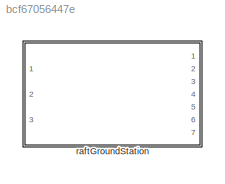
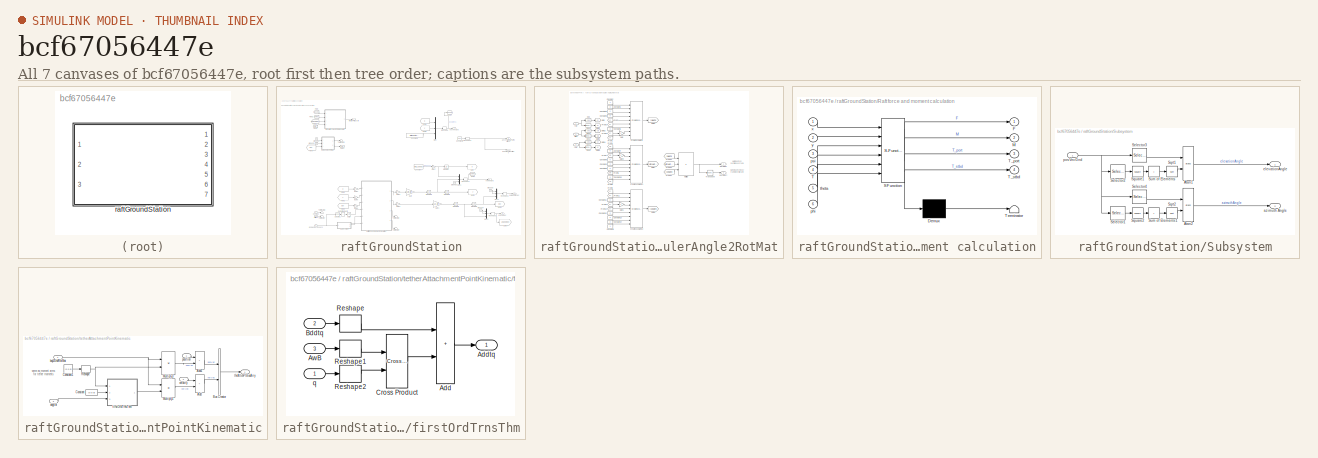
[diagram: thumbnail index - all 7 canvases of the model, root first then tree order]
MODEL slx_bcf67056447e
KIND library
CONFIG AbsTol = auto
CONFIG EnableMultiTasking = off
CONFIG FixedStep = auto
CONFIG MaxStep = auto
CONFIG MinStep = auto
CONFIG RelTol = 1e-3
CONFIG SampleTimeConstraint = Unconstrained
CONFIG SolverName = VariableStepAuto
CONFIG StartTime = 0.0
CONFIG StopTime = 10.0
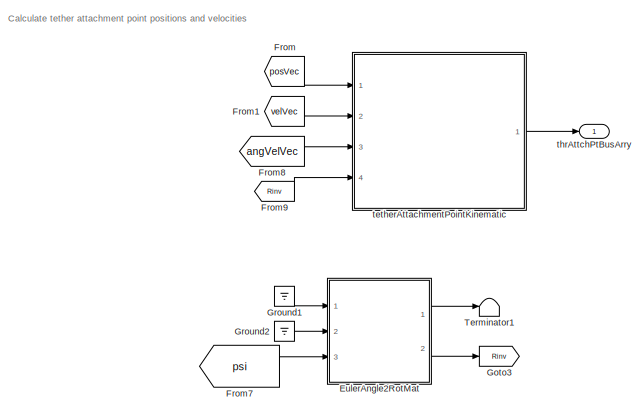
[diagram: raftGroundStation - part 1/3, top left region]
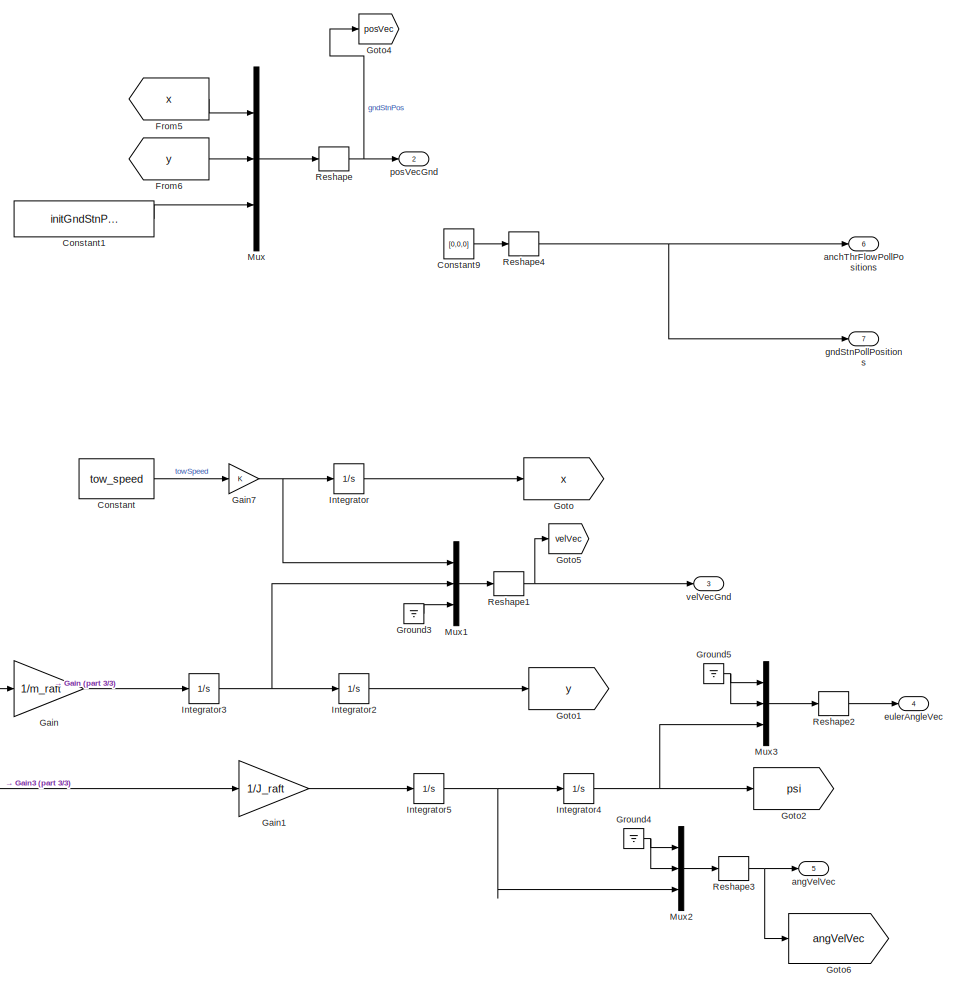
[diagram: raftGroundStation - part 2/3, right side, full height]
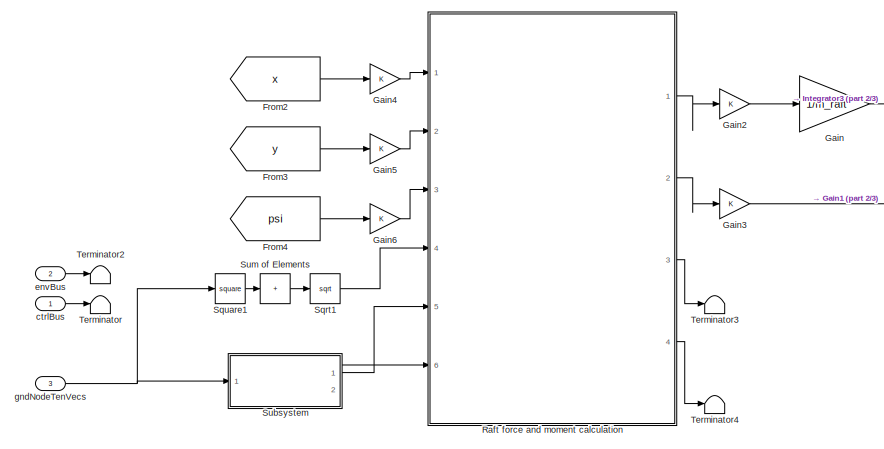
[diagram: raftGroundStation - part 3/3, bottom center region]
BLOCK [SubSystem] raftGroundStation
  Ports = [3, 7]
  RequestExecContextInheritance = off
  VariantControl = VSS_groundStation_raftGroundStation
BLOCK [Constant] raftGroundStation/Constant
  Value = tow_speed
BLOCK [Constant] raftGroundStation/Constant1
  Value = initGndStnPos(3)
BLOCK [Constant] raftGroundStation/Constant9
  Value = [0,0,0]
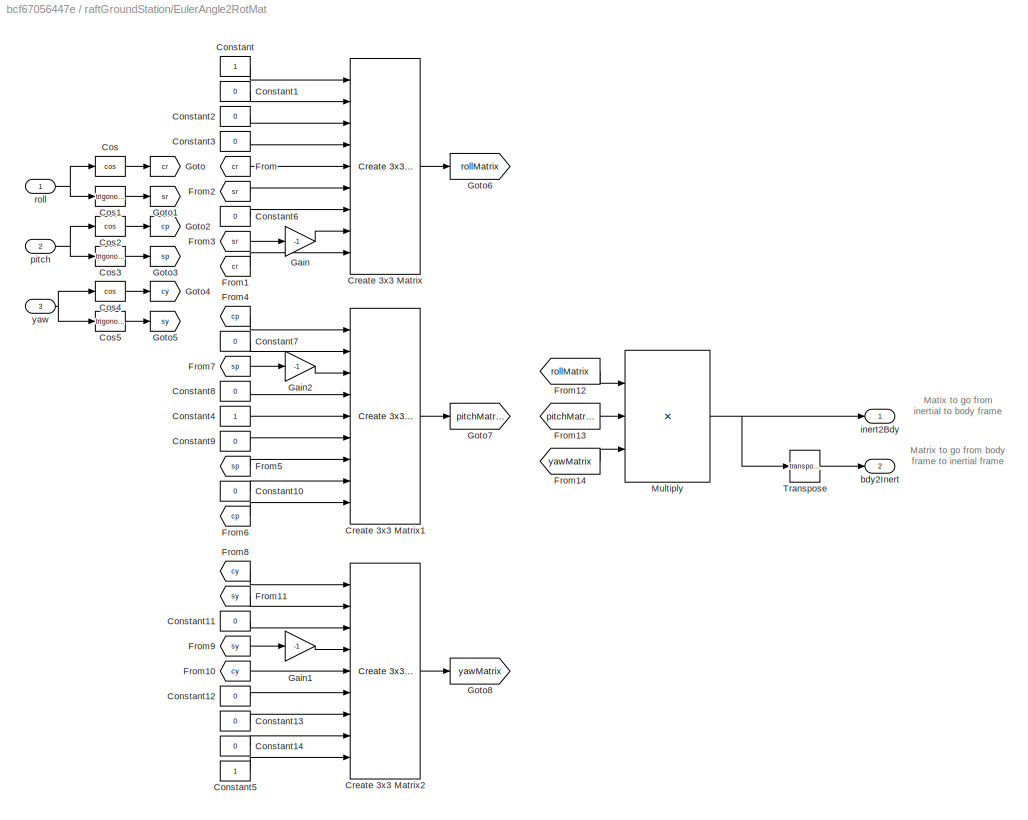
BLOCK [SubSystem] raftGroundStation/EulerAngle2RotMat
  AncestorBlock = eulAng2RotMat_ul/EulerAngle2RotMat
  Ports = [3, 2]
  RequestExecContextInheritance = off
BLOCK [Constant] raftGroundStation/EulerAngle2RotMat/Constant
BLOCK [Constant] raftGroundStation/EulerAngle2RotMat/Constant1
  Value = 0
BLOCK [Constant] raftGroundStation/EulerAngle2RotMat/Constant10
  Value = 0
BLOCK [Constant] raftGroundStation/EulerAngle2RotMat/Constant11
  Value = 0
BLOCK [Constant] raftGroundStation/EulerAngle2RotMat/Constant12
  Value = 0
BLOCK [Constant] raftGroundStation/EulerAngle2RotMat/Constant13
  Value = 0
BLOCK [Constant] raftGroundStation/EulerAngle2RotMat/Constant14
  Value = 0
BLOCK [Constant] raftGroundStation/EulerAngle2RotMat/Constant2
  Value = 0
BLOCK [Constant] raftGroundStation/EulerAngle2RotMat/Constant3
  Value = 0
BLOCK [Constant] raftGroundStation/EulerAngle2RotMat/Constant4
BLOCK [Constant] raftGroundStation/EulerAngle2RotMat/Constant5
BLOCK [Constant] raftGroundStation/EulerAngle2RotMat/Constant6
  Value = 0
BLOCK [Constant] raftGroundStation/EulerAngle2RotMat/Constant7
  Value = 0
BLOCK [Constant] raftGroundStation/EulerAngle2RotMat/Constant8
  Value = 0
BLOCK [Constant] raftGroundStation/EulerAngle2RotMat/Constant9
  Value = 0
BLOCK [Trigonometry] raftGroundStation/EulerAngle2RotMat/Cos
  Operator = cos
  Ports = [1, 1]
BLOCK [Trigonometry] raftGroundStation/EulerAngle2RotMat/Cos1
  Ports = [1, 1]
BLOCK [Trigonometry] raftGroundStation/EulerAngle2RotMat/Cos2
  Operator = cos
  Ports = [1, 1]
BLOCK [Trigonometry] raftGroundStation/EulerAngle2RotMat/Cos3
  Ports = [1, 1]
BLOCK [Trigonometry] raftGroundStation/EulerAngle2RotMat/Cos4
  Operator = cos
  Ports = [1, 1]
BLOCK [Trigonometry] raftGroundStation/EulerAngle2RotMat/Cos5
  Ports = [1, 1]
BLOCK [Reference] raftGroundStation/EulerAngle2RotMat/Create 3x3 Matrix  REF=sharedutil/Create 3x3 Matrix
  Ports = [9, 1]
  SourceBlock = sharedutil/Create 3x3 Matrix
  SourceProductBaseCode = AE,PW,DR,MT,VE
  SourceType = Create 3x3 Matrix
BLOCK [Reference] raftGroundStation/EulerAngle2RotMat/Create 3x3 Matrix1  REF=sharedutil/Create 3x3 Matrix
  Ports = [9, 1]
  SourceBlock = sharedutil/Create 3x3 Matrix
  SourceProductBaseCode = AE,PW,DR,MT,VE
  SourceType = Create 3x3 Matrix
BLOCK [Reference] raftGroundStation/EulerAngle2RotMat/Create 3x3 Matrix2  REF=sharedutil/Create 3x3 Matrix
  Ports = [9, 1]
  SourceBlock = sharedutil/Create 3x3 Matrix
  SourceProductBaseCode = AE,PW,DR,MT,VE
  SourceType = Create 3x3 Matrix
BLOCK [From] raftGroundStation/EulerAngle2RotMat/From
  GotoTag = cr
BLOCK [From] raftGroundStation/EulerAngle2RotMat/From1
  GotoTag = cr
BLOCK [From] raftGroundStation/EulerAngle2RotMat/From10
  GotoTag = cy
BLOCK [From] raftGroundStation/EulerAngle2RotMat/From11
  GotoTag = sy
BLOCK [From] raftGroundStation/EulerAngle2RotMat/From12
  GotoTag = rollMatrix
BLOCK [From] raftGroundStation/EulerAngle2RotMat/From13
  GotoTag = pitchMatrix
BLOCK [From] raftGroundStation/EulerAngle2RotMat/From14
  GotoTag = yawMatrix
BLOCK [From] raftGroundStation/EulerAngle2RotMat/From2
  GotoTag = sr
BLOCK [From] raftGroundStation/EulerAngle2RotMat/From3
  GotoTag = sr
BLOCK [From] raftGroundStation/EulerAngle2RotMat/From4
  GotoTag = cp
BLOCK [From] raftGroundStation/EulerAngle2RotMat/From5
  GotoTag = sp
BLOCK [From] raftGroundStation/EulerAngle2RotMat/From6
  GotoTag = cp
BLOCK [From] raftGroundStation/EulerAngle2RotMat/From7
  GotoTag = sp
BLOCK [From] raftGroundStation/EulerAngle2RotMat/From8
  GotoTag = cy
BLOCK [From] raftGroundStation/EulerAngle2RotMat/From9
  GotoTag = sy
BLOCK [Gain] raftGroundStation/EulerAngle2RotMat/Gain
  Gain = -1
BLOCK [Gain] raftGroundStation/EulerAngle2RotMat/Gain1
  Gain = -1
BLOCK [Gain] raftGroundStation/EulerAngle2RotMat/Gain2
  Gain = -1
BLOCK [Goto] raftGroundStation/EulerAngle2RotMat/Goto
  GotoTag = cr
BLOCK [Goto] raftGroundStation/EulerAngle2RotMat/Goto1
  GotoTag = sr
BLOCK [Goto] raftGroundStation/EulerAngle2RotMat/Goto2
  GotoTag = cp
BLOCK [Goto] raftGroundStation/EulerAngle2RotMat/Goto3
  GotoTag = sp
BLOCK [Goto] raftGroundStation/EulerAngle2RotMat/Goto4
  GotoTag = cy
BLOCK [Goto] raftGroundStation/EulerAngle2RotMat/Goto5
  GotoTag = sy
BLOCK [Goto] raftGroundStation/EulerAngle2RotMat/Goto6
  GotoTag = rollMatrix
BLOCK [Goto] raftGroundStation/EulerAngle2RotMat/Goto7
  GotoTag = pitchMatrix
BLOCK [Goto] raftGroundStation/EulerAngle2RotMat/Goto8
  GotoTag = yawMatrix
BLOCK [Product] raftGroundStation/EulerAngle2RotMat/Multiply
  Inputs = 3
  Multiplication = Matrix(*)
  Ports = [3, 1]
BLOCK [Math] raftGroundStation/EulerAngle2RotMat/Transpose
  Operator = transpose
  Ports = [1, 1]
  SignedPower = on
BLOCK [Outport] raftGroundStation/EulerAngle2RotMat/bdy2Inert
  Port = 2
  VectorParamsAs1DForOutWhenUnconnected = off
BLOCK [Outport] raftGroundStation/EulerAngle2RotMat/inert2Bdy
  VectorParamsAs1DForOutWhenUnconnected = off
BLOCK [Inport] raftGroundStation/EulerAngle2RotMat/pitch
  Port = 2
BLOCK [Inport] raftGroundStation/EulerAngle2RotMat/roll
BLOCK [Inport] raftGroundStation/EulerAngle2RotMat/yaw
  Port = 3
BLOCK [From] raftGroundStation/From
  GotoTag = posVec
BLOCK [From] raftGroundStation/From1
  GotoTag = velVec
BLOCK [From] raftGroundStation/From2
  GotoTag = x
BLOCK [From] raftGroundStation/From3
  GotoTag = y
BLOCK [From] raftGroundStation/From4
  GotoTag = psi
BLOCK [From] raftGroundStation/From5
  GotoTag = x
BLOCK [From] raftGroundStation/From6
  GotoTag = y
BLOCK [From] raftGroundStation/From7
  GotoTag = psi
BLOCK [From] raftGroundStation/From8
  GotoTag = angVelVec
BLOCK [From] raftGroundStation/From9
  GotoTag = Rinv
BLOCK [Gain] raftGroundStation/Gain
  Gain = 1/m_raft
BLOCK [Gain] raftGroundStation/Gain1
  Gain = 1/J_raft
BLOCK [Gain] raftGroundStation/Gain2
BLOCK [Gain] raftGroundStation/Gain3
BLOCK [Gain] raftGroundStation/Gain4
BLOCK [Gain] raftGroundStation/Gain5
BLOCK [Gain] raftGroundStation/Gain6
BLOCK [Gain] raftGroundStation/Gain7
BLOCK [Goto] raftGroundStation/Goto
  GotoTag = x
BLOCK [Goto] raftGroundStation/Goto1
  GotoTag = y
BLOCK [Goto] raftGroundStation/Goto2
  GotoTag = psi
BLOCK [Goto] raftGroundStation/Goto3
  GotoTag = Rinv
BLOCK [Goto] raftGroundStation/Goto4
  GotoTag = posVec
BLOCK [Goto] raftGroundStation/Goto5
  GotoTag = velVec
BLOCK [Goto] raftGroundStation/Goto6
  GotoTag = angVelVec
BLOCK [Ground] raftGroundStation/Ground1
BLOCK [Ground] raftGroundStation/Ground2
BLOCK [Ground] raftGroundStation/Ground3
BLOCK [Ground] raftGroundStation/Ground4
BLOCK [Ground] raftGroundStation/Ground5
BLOCK [Integrator] raftGroundStation/Integrator
  InitialCondition = x_init
  Ports = [1, 1]
BLOCK [Integrator] raftGroundStation/Integrator2
  InitialCondition = y_init
  Ports = [1, 1]
BLOCK [Integrator] raftGroundStation/Integrator3
  InitialCondition = y_dot_init
  Ports = [1, 1]
BLOCK [Integrator] raftGroundStation/Integrator4
  InitialCondition = psi_init
  Ports = [1, 1]
BLOCK [Integrator] raftGroundStation/Integrator5
  InitialCondition = psi_dot_init
  Ports = [1, 1]
BLOCK [Mux] raftGroundStation/Mux
  DisplayOption = bar
  Inputs = 3
  Ports = [3, 1]
BLOCK [Mux] raftGroundStation/Mux1
  DisplayOption = bar
  Inputs = 3
  Ports = [3, 1]
BLOCK [Mux] raftGroundStation/Mux2
  DisplayOption = bar
  Inputs = 3
  Ports = [3, 1]
BLOCK [Mux] raftGroundStation/Mux3
  DisplayOption = bar
  Inputs = 3
  Ports = [3, 1]
BLOCK [SubSystem] raftGroundStation/Raft force and moment calculation
  ErrorFcn = Stateflow.Translate.translate
  PermitHierarchicalResolution = ExplicitOnly
  Ports = [6, 4]
  RequestExecContextInheritance = off
  SFBlockType = MATLAB Function
  TreatAsAtomicUnit = on
BLOCK [Demux] raftGroundStation/Raft force and moment calculation/ Demux 
  Outputs = 1
  Ports = [1, 1]
BLOCK [S-Function] raftGroundStation/Raft force and moment calculation/ SFunction 
  EnableBusSupport = off
  FunctionName = sf_sfun
  PortCounts = [6 5]
  Ports = [6, 5]
  SFcnIsStateOwnerBlock = off
  SFunctionDeploymentMode = off
  Tag = Stateflow S-Function 45
BLOCK [Terminator] raftGroundStation/Raft force and moment calculation/ Terminator 
BLOCK [Outport] raftGroundStation/Raft force and moment calculation/F
  VectorParamsAs1DForOutWhenUnconnected = off
BLOCK [Outport] raftGroundStation/Raft force and moment calculation/M
  Port = 2
  VectorParamsAs1DForOutWhenUnconnected = off
BLOCK [Inport] raftGroundStation/Raft force and moment calculation/T
  Port = 4
BLOCK [Outport] raftGroundStation/Raft force and moment calculation/T_port
  Port = 3
  VectorParamsAs1DForOutWhenUnconnected = off
BLOCK [Outport] raftGroundStation/Raft force and moment calculation/T_stbd
  Port = 4
  VectorParamsAs1DForOutWhenUnconnected = off
BLOCK [Inport] raftGroundStation/Raft force and moment calculation/phi
  Port = 6
BLOCK [Inport] raftGroundStation/Raft force and moment calculation/psi
  Port = 3
BLOCK [Inport] raftGroundStation/Raft force and moment calculation/theta
  Port = 5
BLOCK [Inport] raftGroundStation/Raft force and moment calculation/x
BLOCK [Inport] raftGroundStation/Raft force and moment calculation/y
  Port = 2
BLOCK [Reshape] raftGroundStation/Reshape
  OutputDimensionality = Column vector (2-D)
  Ports = [1, 1]
BLOCK [Reshape] raftGroundStation/Reshape1
  OutputDimensionality = Column vector (2-D)
  Ports = [1, 1]
BLOCK [Reshape] raftGroundStation/Reshape2
  OutputDimensionality = Column vector (2-D)
  Ports = [1, 1]
BLOCK [Reshape] raftGroundStation/Reshape3
  OutputDimensionality = Column vector (2-D)
  Ports = [1, 1]
BLOCK [Reshape] raftGroundStation/Reshape4
  OutputDimensionality = Column vector (2-D)
  Ports = [1, 1]
BLOCK [Sqrt] raftGroundStation/Sqrt1
BLOCK [Math] raftGroundStation/Square1
  Operator = square
  Ports = [1, 1]
  SignedPower = on
BLOCK [SubSystem] raftGroundStation/Subsystem
  Ports = [1, 2]
  RequestExecContextInheritance = off
BLOCK [Trigonometry] raftGroundStation/Subsystem/Atan1
  Operator = atan2
  Ports = [2, 1]
BLOCK [Trigonometry] raftGroundStation/Subsystem/Atan2
  Operator = atan2
  Ports = [2, 1]
BLOCK [Selector] raftGroundStation/Subsystem/Selector1
  IndexOptions = Index vector (dialog)
  Indices = 1
  InputPortWidth = 3
  OutputSizes = 1
  Ports = [1, 1]
BLOCK [Selector] raftGroundStation/Subsystem/Selector2
  IndexOptions = Index vector (dialog)
  Indices = [1 2]
  InputPortWidth = 3
  OutputSizes = 1
  Ports = [1, 1]
BLOCK [Selector] raftGroundStation/Subsystem/Selector3
  IndexOptions = Index vector (dialog)
  Indices = 3
  InputPortWidth = 3
  OutputSizes = 1
  Ports = [1, 1]
BLOCK [Selector] raftGroundStation/Subsystem/Selector4
  IndexOptions = Index vector (dialog)
  Indices = 2
  InputPortWidth = 3
  OutputSizes = 1
  Ports = [1, 1]
BLOCK [Sqrt] raftGroundStation/Subsystem/Sqrt1
BLOCK [Sqrt] raftGroundStation/Subsystem/Sqrt2
BLOCK [Math] raftGroundStation/Subsystem/Square1
  Operator = square
  Ports = [1, 1]
  SignedPower = on
BLOCK [Math] raftGroundStation/Subsystem/Square2
  Operator = square
  Ports = [1, 1]
  SignedPower = on
BLOCK [Sum] raftGroundStation/Subsystem/Sum of Elements
  IconShape = rectangular
  Inputs = +
  Ports = [1, 1]
BLOCK [Sum] raftGroundStation/Subsystem/Sum of Elements1
  IconShape = rectangular
  Inputs = +
  Ports = [1, 1]
BLOCK [Outport] raftGroundStation/Subsystem/azimuth Angle
  Port = 2
BLOCK [Outport] raftGroundStation/Subsystem/elevationAngle
BLOCK [Inport] raftGroundStation/Subsystem/posVecGnd
BLOCK [Sum] raftGroundStation/Sum of Elements
  IconShape = rectangular
  Inputs = +
  Ports = [1, 1]
BLOCK [Terminator] raftGroundStation/Terminator
BLOCK [Terminator] raftGroundStation/Terminator1
BLOCK [Terminator] raftGroundStation/Terminator2
BLOCK [Terminator] raftGroundStation/Terminator3
BLOCK [Terminator] raftGroundStation/Terminator4
BLOCK [Outport] raftGroundStation/anchThrFlowPollPositions
  Port = 6
  VectorParamsAs1DForOutWhenUnconnected = off
BLOCK [Outport] raftGroundStation/angVelVec
  Port = 5
  VectorParamsAs1DForOutWhenUnconnected = off
BLOCK [Inport] raftGroundStation/ctrlBus
  OutDataTypeStr = Bus: gndStnCtrlBus
BLOCK [Inport] raftGroundStation/envBus
  OutDataTypeStr = Bus: envBus
  Port = 2
BLOCK [Outport] raftGroundStation/eulerAngleVec
  Port = 4
  VectorParamsAs1DForOutWhenUnconnected = off
BLOCK [Inport] raftGroundStation/gndNodeTenVecs
  Port = 3
BLOCK [Outport] raftGroundStation/gndStnPollPositions
  Port = 7
  VectorParamsAs1DForOutWhenUnconnected = off
BLOCK [Outport] raftGroundStation/posVecGnd
  Port = 2
  VectorParamsAs1DForOutWhenUnconnected = off
BLOCK [SubSystem] raftGroundStation/tetherAttachmentPointKinematic
  InitFcn = thrAttachPtKinematics_init
  Ports = [4, 1]
  RequestExecContextInheritance = off
BLOCK [Sum] raftGroundStation/tetherAttachmentPointKinematic/Add
  IconShape = rectangular
  Ports = [2, 1]
BLOCK [Sum] raftGroundStation/tetherAttachmentPointKinematic/Add1
  IconShape = rectangular
  Ports = [2, 1]
BLOCK [BusCreator] raftGroundStation/tetherAttachmentPointKinematic/Bus Creator
  DisplayOption = bar
  InheritFromInputs = on
  Inputs = 2
  NonVirtualBus = on
  OutDataTypeStr = Bus: thrAttachPtKinematicsBus
  Ports = [2, 1]
BLOCK [Constant] raftGroundStation/tetherAttachmentPointKinematic/Constant
  Value = [0 0 0]
BLOCK [Constant] raftGroundStation/tetherAttachmentPointKinematic/Constant1
  Value = [0 0 0]
BLOCK [Product] raftGroundStation/tetherAttachmentPointKinematic/Multiply1
  Multiplication = Matrix(*)
  Ports = [2, 1]
BLOCK [Product] raftGroundStation/tetherAttachmentPointKinematic/Multiply3
  Multiplication = Matrix(*)
  Ports = [2, 1]
BLOCK [Reshape] raftGroundStation/tetherAttachmentPointKinematic/Reshape
  OutputDimensionality = Column vector (2-D)
  Ports = [1, 1]
BLOCK [Inport] raftGroundStation/tetherAttachmentPointKinematic/angVel
  Port = 3
BLOCK [Inport] raftGroundStation/tetherAttachmentPointKinematic/bdy2GndRotMat
  Port = 4
BLOCK [SubSystem] raftGroundStation/tetherAttachmentPointKinematic/firstOrdTrnsThm
  AncestorBlock = firstOrdTrnsThm_ul/firstOrdTrnsThm
  Ports = [3, 1]
  RequestExecContextInheritance = off
BLOCK [Sum] raftGroundStation/tetherAttachmentPointKinematic/firstOrdTrnsThm/Add
  IconShape = rectangular
  Ports = [2, 1]
BLOCK [Outport] raftGroundStation/tetherAttachmentPointKinematic/firstOrdTrnsThm/Addtq
  PortDimensions = 3
  VectorParamsAs1DForOutWhenUnconnected = off
BLOCK [Inport] raftGroundStation/tetherAttachmentPointKinematic/firstOrdTrnsThm/AwB
  Port = 3
  PortDimensions = 3
BLOCK [Inport] raftGroundStation/tetherAttachmentPointKinematic/firstOrdTrnsThm/Bddtq
  Port = 2
  PortDimensions = 3
BLOCK [Reference] raftGroundStation/tetherAttachmentPointKinematic/firstOrdTrnsThm/Cross Product  REF=vrlib/Utilities/Cross Product
  Ports = [2, 1]
  SourceBlock = vrlib/Utilities/Cross Product
  SourceProductBaseCode = SL
  SourceType = Cross Product
BLOCK [Reshape] raftGroundStation/tetherAttachmentPointKinematic/firstOrdTrnsThm/Reshape
  OutputDimensionality = Column vector (2-D)
  Ports = [1, 1]
BLOCK [Reshape] raftGroundStation/tetherAttachmentPointKinematic/firstOrdTrnsThm/Reshape1
  OutputDimensionality = Column vector (2-D)
  Ports = [1, 1]
BLOCK [Reshape] raftGroundStation/tetherAttachmentPointKinematic/firstOrdTrnsThm/Reshape2
  OutputDimensionality = Column vector (2-D)
  Ports = [1, 1]
BLOCK [Inport] raftGroundStation/tetherAttachmentPointKinematic/firstOrdTrnsThm/q
  PortDimensions = 3
BLOCK [Inport] raftGroundStation/tetherAttachmentPointKinematic/position
BLOCK [Outport] raftGroundStation/tetherAttachmentPointKinematic/thrAttchPtBusArry
  VectorParamsAs1DForOutWhenUnconnected = off
BLOCK [Inport] raftGroundStation/tetherAttachmentPointKinematic/velocity
  Port = 2
BLOCK [Outport] raftGroundStation/thrAttchPtBusArry
  VectorParamsAs1DForOutWhenUnconnected = off
BLOCK [Outport] raftGroundStation/velVecGnd
  Port = 3
  VectorParamsAs1DForOutWhenUnconnected = off
ANNOTATION raftGroundStation: Calculate tether attachment point positions and velocities
ANNOTATION raftGroundStation/EulerAngle2RotMat: Matix to go from inertial to body frame
ANNOTATION raftGroundStation/EulerAngle2RotMat: Matrix to go from body frame to inertial frame
ANNOTATION raftGroundStation/tetherAttachmentPointKinematic: same as moment arms for tether moments
LINE raftGroundStation/Constant1:1 -> raftGroundStation/Mux:3
LINE raftGroundStation/Constant9:1 -> raftGroundStation/Reshape4:1
LINE raftGroundStation/Constant:1 -> raftGroundStation/Gain7:1
LINE raftGroundStation/EulerAngle2RotMat:1 -> raftGroundStation/Terminator1:1
LINE raftGroundStation/EulerAngle2RotMat:2 -> raftGroundStation/Goto3:1
LINE raftGroundStation/From1:1 -> raftGroundStation/tetherAttachmentPointKinematic:2
LINE raftGroundStation/From2:1 -> raftGroundStation/Gain4:1
LINE raftGroundStation/From3:1 -> raftGroundStation/Gain5:1
LINE raftGroundStation/From4:1 -> raftGroundStation/Gain6:1
LINE raftGroundStation/From5:1 -> raftGroundStation/Mux:1
LINE raftGroundStation/From6:1 -> raftGroundStation/Mux:2
LINE raftGroundStation/From7:1 -> raftGroundStation/EulerAngle2RotMat:3
LINE raftGroundStation/From8:1 -> raftGroundStation/tetherAttachmentPointKinematic:3
LINE raftGroundStation/From9:1 -> raftGroundStation/tetherAttachmentPointKinematic:4
LINE raftGroundStation/From:1 -> raftGroundStation/tetherAttachmentPointKinematic:1
LINE raftGroundStation/Gain1:1 -> raftGroundStation/Integrator5:1
LINE raftGroundStation/Gain2:1 -> raftGroundStation/Gain:1
LINE raftGroundStation/Gain3:1 -> raftGroundStation/Gain1:1
LINE raftGroundStation/Gain4:1 -> raftGroundStation/Raft force and moment calculation:1
LINE raftGroundStation/Gain5:1 -> raftGroundStation/Raft force and moment calculation:2
LINE raftGroundStation/Gain6:1 -> raftGroundStation/Raft force and moment calculation:3
NET raftGroundStation/Gain7:1 -> raftGroundStation/Integrator:1, raftGroundStation/Mux1:1
LINE raftGroundStation/Gain:1 -> raftGroundStation/Integrator3:1
LINE raftGroundStation/Ground1:1 -> raftGroundStation/EulerAngle2RotMat:1
LINE raftGroundStation/Ground2:1 -> raftGroundStation/EulerAngle2RotMat:2
LINE raftGroundStation/Ground3:1 -> raftGroundStation/Mux1:3
NET raftGroundStation/Ground4:1 -> raftGroundStation/Mux2:1, raftGroundStation/Mux2:2
NET raftGroundStation/Ground5:1 -> raftGroundStation/Mux3:1, raftGroundStation/Mux3:2
LINE raftGroundStation/Integrator2:1 -> raftGroundStation/Goto1:1
NET raftGroundStation/Integrator3:1 -> raftGroundStation/Integrator2:1, raftGroundStation/Mux1:2
NET raftGroundStation/Integrator4:1 -> raftGroundStation/Goto2:1, raftGroundStation/Mux3:3
NET raftGroundStation/Integrator5:1 -> raftGroundStation/Integrator4:1, raftGroundStation/Mux2:3
LINE raftGroundStation/Integrator:1 -> raftGroundStation/Goto:1
LINE raftGroundStation/Mux1:1 -> raftGroundStation/Reshape1:1
LINE raftGroundStation/Mux2:1 -> raftGroundStation/Reshape3:1
LINE raftGroundStation/Mux3:1 -> raftGroundStation/Reshape2:1
LINE raftGroundStation/Mux:1 -> raftGroundStation/Reshape:1
LINE raftGroundStation/Raft force and moment calculation:1 -> raftGroundStation/Gain2:1
LINE raftGroundStation/Raft force and moment calculation:2 -> raftGroundStation/Gain3:1
LINE raftGroundStation/Raft force and moment calculation:3 -> raftGroundStation/Terminator3:1
LINE raftGroundStation/Raft force and moment calculation:4 -> raftGroundStation/Terminator4:1
NET raftGroundStation/Reshape1:1 -> raftGroundStation/Goto5:1, raftGroundStation/velVecGnd:1
LINE raftGroundStation/Reshape2:1 -> raftGroundStation/eulerAngleVec:1
NET raftGroundStation/Reshape3:1 -> raftGroundStation/Goto6:1, raftGroundStation/angVelVec:1
NET raftGroundStation/Reshape4:1 -> raftGroundStation/anchThrFlowPollPositions:1, raftGroundStation/gndStnPollPositions:1
NET raftGroundStation/Reshape:1 -> raftGroundStation/Goto4:1, raftGroundStation/posVecGnd:1
LINE raftGroundStation/Sqrt1:1 -> raftGroundStation/Raft force and moment calculation:4
LINE raftGroundStation/Square1:1 -> raftGroundStation/Sum of Elements:1
LINE raftGroundStation/Subsystem/Atan1:1 -> raftGroundStation/Subsystem/elevationAngle:1
LINE raftGroundStation/Subsystem/Atan2:1 -> raftGroundStation/Subsystem/azimuth Angle:1
LINE raftGroundStation/Subsystem/Selector1:1 -> raftGroundStation/Subsystem/Square2:1
LINE raftGroundStation/Subsystem/Selector2:1 -> raftGroundStation/Subsystem/Square1:1
LINE raftGroundStation/Subsystem/Selector3:1 -> raftGroundStation/Subsystem/Atan1:1
LINE raftGroundStation/Subsystem/Selector4:1 -> raftGroundStation/Subsystem/Atan2:1
LINE raftGroundStation/Subsystem/Sqrt1:1 -> raftGroundStation/Subsystem/Atan1:2
LINE raftGroundStation/Subsystem/Sqrt2:1 -> raftGroundStation/Subsystem/Atan2:2
LINE raftGroundStation/Subsystem/Square1:1 -> raftGroundStation/Subsystem/Sum of Elements:1
LINE raftGroundStation/Subsystem/Square2:1 -> raftGroundStation/Subsystem/Sum of Elements1:1
LINE raftGroundStation/Subsystem/Sum of Elements1:1 -> raftGroundStation/Subsystem/Sqrt2:1
LINE raftGroundStation/Subsystem/Sum of Elements:1 -> raftGroundStation/Subsystem/Sqrt1:1
NET raftGroundStation/Subsystem/posVecGnd:1 -> raftGroundStation/Subsystem/Selector1:1, raftGroundStation/Subsystem/Selector2:1, raftGroundStation/Subsystem/Selector3:1, raftGroundStation/Subsystem/Selector4:1
LINE raftGroundStation/Subsystem:1 -> raftGroundStation/Raft force and moment calculation:5
LINE raftGroundStation/Subsystem:2 -> raftGroundStation/Raft force and moment calculation:6
LINE raftGroundStation/Sum of Elements:1 -> raftGroundStation/Sqrt1:1
LINE raftGroundStation/ctrlBus:1 -> raftGroundStation/Terminator:1
LINE raftGroundStation/envBus:1 -> raftGroundStation/Terminator2:1
NET raftGroundStation/gndNodeTenVecs:1 -> raftGroundStation/Square1:1, raftGroundStation/Subsystem:1
LINE raftGroundStation/tetherAttachmentPointKinematic/Add1:1 -> raftGroundStation/tetherAttachmentPointKinematic/Bus Creator:1
LINE raftGroundStation/tetherAttachmentPointKinematic/Add:1 -> raftGroundStation/tetherAttachmentPointKinematic/Bus Creator:2
LINE raftGroundStation/tetherAttachmentPointKinematic/Bus Creator:1 -> raftGroundStation/tetherAttachmentPointKinematic/thrAttchPtBusArry:1
LINE raftGroundStation/tetherAttachmentPointKinematic/Constant1:1 -> raftGroundStation/tetherAttachmentPointKinematic/Reshape:1
LINE raftGroundStation/tetherAttachmentPointKinematic/Constant:1 -> raftGroundStation/tetherAttachmentPointKinematic/firstOrdTrnsThm:2
LINE raftGroundStation/tetherAttachmentPointKinematic/Multiply1:1 -> raftGroundStation/tetherAttachmentPointKinematic/Add:2
LINE raftGroundStation/tetherAttachmentPointKinematic/Multiply3:1 -> raftGroundStation/tetherAttachmentPointKinematic/Add1:2
NET raftGroundStation/tetherAttachmentPointKinematic/Reshape:1 -> raftGroundStation/tetherAttachmentPointKinematic/Multiply3:2, raftGroundStation/tetherAttachmentPointKinematic/firstOrdTrnsThm:1
LINE raftGroundStation/tetherAttachmentPointKinematic/angVel:1 -> raftGroundStation/tetherAttachmentPointKinematic/firstOrdTrnsThm:3
NET raftGroundStation/tetherAttachmentPointKinematic/bdy2GndRotMat:1 -> raftGroundStation/tetherAttachmentPointKinematic/Multiply1:1, raftGroundStation/tetherAttachmentPointKinematic/Multiply3:1
LINE raftGroundStation/tetherAttachmentPointKinematic/firstOrdTrnsThm:1 -> raftGroundStation/tetherAttachmentPointKinematic/Multiply1:2
LINE raftGroundStation/tetherAttachmentPointKinematic/position:1 -> raftGroundStation/tetherAttachmentPointKinematic/Add1:1
LINE raftGroundStation/tetherAttachmentPointKinematic/velocity:1 -> raftGroundStation/tetherAttachmentPointKinematic/Add:1
LINE raftGroundStation/tetherAttachmentPointKinematic:1 -> raftGroundStation/thrAttchPtBusArry:1
note: NET lines group one-source signal fan-out (src -> all destinations, sorted); 1:1 wires keep LINE
CHART raftGroundStation/Raft force and moment calculation states=1 transitions=1
  STATE_LABEL 'eML_blk_kernel()'
  STATE_LABEL 'SCRIPT:\nfunction [F,M,T_port,T_stbd] = test(x,y,psi,T, theta,phi)\n\n%   Variable names\n%   F = total lateral force acting on the raft (F)\n%   M = total yaw moment acting on the raft (Nm)\n%   psi = raft yaw angle (rad)\n%   T = kite tether tension (N)\n%   theta = kite elevation angle (rad)\n%   phi = kite azimuth angle (rad)\n\nL_pool = 22.86;     %   meters\nT_pre = 1000;       %   Pretension (N)\n\n%   R...<+2522ch>'
CHART  states=0 transitions=0
